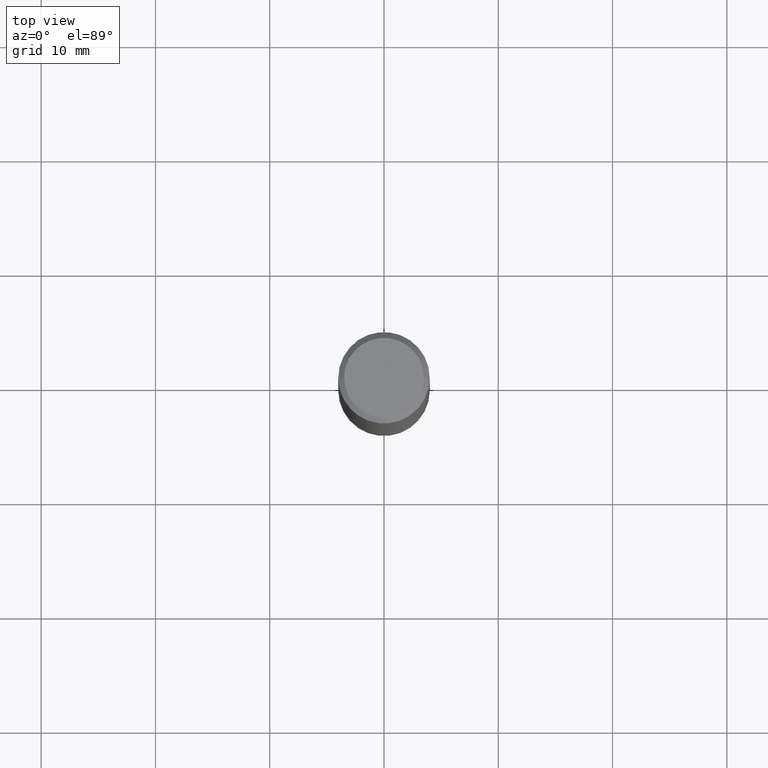
[diagram: clean part render]
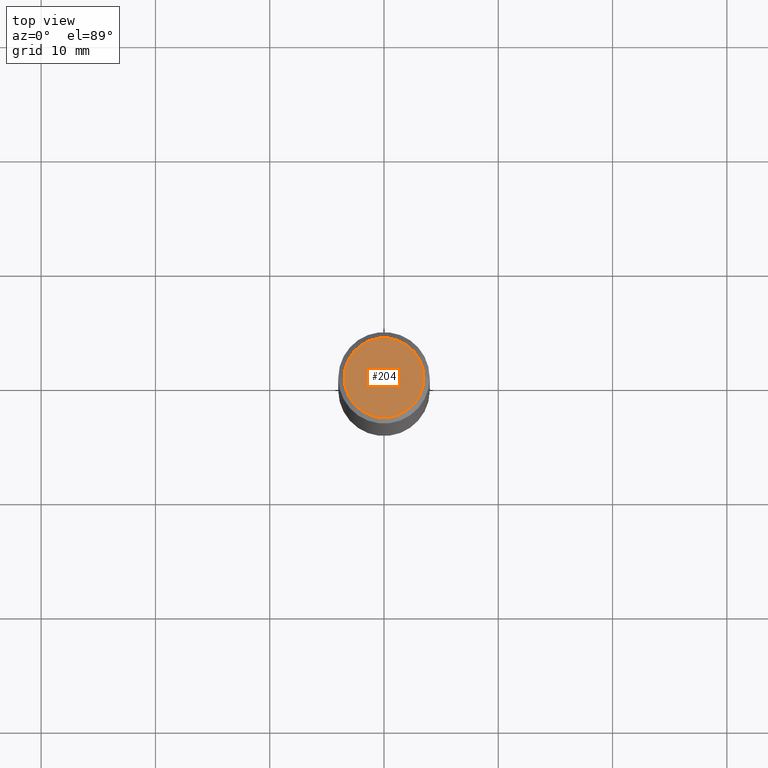
[diagram: same view with one face highlighted and labeled with its STEP entity id]
A machine part, top view. The second image highlights one B-rep face of the part: STEP entity #204.
In plain terms, the highlighted planar face has unit normal (0, -0, -1).
Its self-contained STEP definition (entity closure, byte-faithful):
#48 = DIRECTION ( 'NONE',  ( -2.445468806185136597E-29, 3.491481338843145583E-15, 1.000000000000000000 ) ) ;
#49 = FACE_OUTER_BOUND ( 'NONE', #216, .T. ) ;
#62 = ORIENTED_EDGE ( 'NONE', *, *, #283, .T. ) ;
#96 = DIRECTION ( 'NONE',  ( -2.445468806185136597E-29, 3.491481338843145583E-15, 1.000000000000000000 ) ) ;
#100 = CARTESIAN_POINT ( 'NONE',  ( -0.1374999999999998446, 9.950721815702915469E-16, 8.537024980193986277E-18 ) ) ;
#102 = AXIS2_PLACEMENT_3D ( 'NONE', #185, #296, #329 ) ;
#109 = VERTEX_POINT ( 'NONE', #123 ) ;
#117 = EDGE_CURVE ( 'NONE', #145, #109, #311, .T. ) ;
#123 = CARTESIAN_POINT ( 'NONE',  ( 0.1374999999999998446, -1.046838268059731308E-15, 8.537024980207840646E-18 ) ) ;
#134 = AXIS2_PLACEMENT_3D ( 'NONE', #242, #48, #160 ) ;
#145 = VERTEX_POINT ( 'NONE', #100 ) ;
#156 = AXIS2_PLACEMENT_3D ( 'NONE', #232, #96, #201 ) ;
#160 = DIRECTION ( 'NONE',  ( 1.000000000000000000, -6.982962677686265922E-15, 4.876173381029105647E-29 ) ) ;
#185 = CARTESIAN_POINT ( 'NONE',  ( 9.601573681818602922E-16, 0.1374999999999998446, -4.758101716008314943E-16 ) ) ;
#201 = DIRECTION ( 'NONE',  ( 1.000000000000000000, -6.982962677686265922E-15, 4.876173381029105647E-29 ) ) ;
#202 = CIRCLE ( 'NONE', #134, 0.1374999999999998446 ) ;
#204 = ADVANCED_FACE ( 'NONE', ( #49 ), #354, .F. ) ;
#216 = EDGE_LOOP ( 'NONE', ( #251, #62 ) ) ;
#232 = CARTESIAN_POINT ( 'NONE',  ( -2.087702828670439639E-46, 2.980686340760894400E-32, 8.537024980200822558E-18 ) ) ;
#242 = CARTESIAN_POINT ( 'NONE',  ( -2.087702828670439639E-46, 2.980686340760894400E-32, 8.537024980200822558E-18 ) ) ;
#251 = ORIENTED_EDGE ( 'NONE', *, *, #117, .T. ) ;
#283 = EDGE_CURVE ( 'NONE', #109, #145, #202, .T. ) ;
#296 = DIRECTION ( 'NONE',  ( 2.438088387897960049E-29, -3.491481338843145188E-15, -1.000000000000000000 ) ) ;
#311 = CIRCLE ( 'NONE', #156, 0.1374999999999998446 ) ;
#329 = DIRECTION ( 'NONE',  ( -1.000000000000000000, 6.982962677686265922E-15, -4.876176775795935793E-29 ) ) ;
#354 = PLANE ( 'NONE',  #102 ) ;